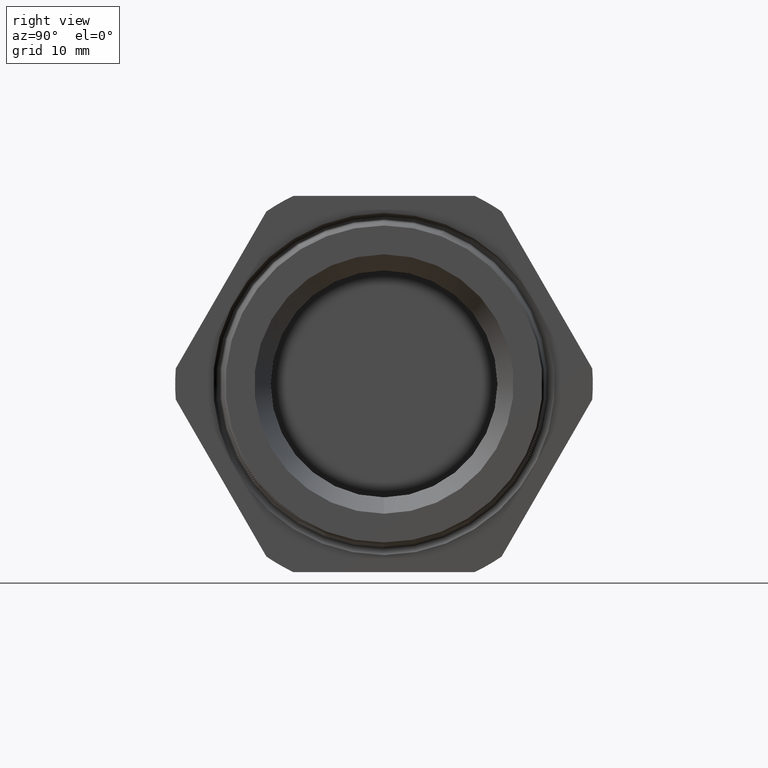
[diagram: clean part render]
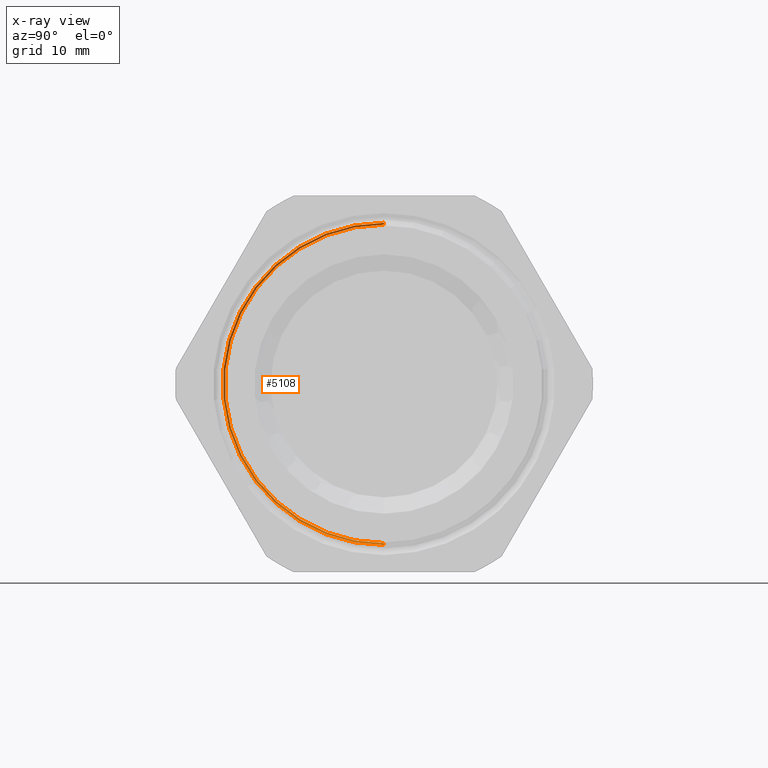
[diagram: x-ray — body ghosted, one internal face saturated and labeled with its STEP entity id]
A machine part, right view, then the same camera in x-ray: the body is ghosted and one INTERNAL B-rep face — a face not visible from any outside direction — is saturated and labeled: STEP entity #5108.
In plain terms, the highlighted conical surface has half-angle 58 deg.
Its self-contained STEP definition (entity closure, byte-faithful):
#1042 = CARTESIAN_POINT ( 'NONE',  ( 0.2726611505627726300, 1.095937749391210100E-016, -0.8949010850755047000 ) ) ;
#1082 = DIRECTION ( 'NONE',  ( 0.5299192642331904700, 0.0000000000000000000, -0.8480480961564351700 ) ) ;
#1083 = VECTOR ( 'NONE', #1082, 39.37007874015747400 ) ;
#1084 = CARTESIAN_POINT ( 'NONE',  ( 0.2662629719890789400, 0.0000000000000000000, -0.8846618589810537600 ) ) ;
#1085 = LINE ( 'NONE', #1084, #1083 ) ;
#1092 = CARTESIAN_POINT ( 'NONE',  ( 0.2726611505627726300, 0.0000000000000000000, 0.8949010850755047000 ) ) ;
#1127 = CARTESIAN_POINT ( 'NONE',  ( 0.2662629719890789400, 0.0000000000000000000, 0.8846618589810537600 ) ) ;
#1141 = LINE ( 'NONE', #1199, #1198 ) ;
#1177 = CARTESIAN_POINT ( 'NONE',  ( 0.2662629719890789400, 1.089926047678572800E-016, -0.8846618589810537600 ) ) ;
#1197 = DIRECTION ( 'NONE',  ( 0.5299192642331904700, 1.038559386480985300E-016, 0.8480480961564351700 ) ) ;
#1198 = VECTOR ( 'NONE', #1197, 39.37007874015747400 ) ;
#1199 = CARTESIAN_POINT ( 'NONE',  ( 0.2662629719890789400, 1.083398313928894600E-016, 0.8846618589810537600 ) ) ;
#1484 = DIRECTION ( 'NONE',  ( 0.0000000000000000000, 0.0000000000000000000, -1.000000000000000000 ) ) ;
#1485 = DIRECTION ( 'NONE',  ( -1.000000000000000000, 0.0000000000000000000, 0.0000000000000000000 ) ) ;
#1486 = CARTESIAN_POINT ( 'NONE',  ( 0.2726611505627726300, 0.0000000000000000000, 0.0000000000000000000 ) ) ;
#1487 = AXIS2_PLACEMENT_3D ( 'NONE', #1486, #1485, #1484 ) ;
#1488 = CIRCLE ( 'NONE', #1487, 0.8949010850755045900 ) ;
#2325 = DIRECTION ( 'NONE',  ( 0.0000000000000000000, 0.0000000000000000000, -1.000000000000000000 ) ) ;
#2326 = DIRECTION ( 'NONE',  ( 1.000000000000000000, 0.0000000000000000000, 0.0000000000000000000 ) ) ;
#2327 = AXIS2_PLACEMENT_3D ( 'NONE', #2332, #2326, #2325 ) ;
#2328 = CIRCLE ( 'NONE', #2327, 0.8846618589810537600 ) ;
#2329 = DIRECTION ( 'NONE',  ( 0.0000000000000000000, 0.0000000000000000000, -1.000000000000000000 ) ) ;
#2330 = DIRECTION ( 'NONE',  ( 1.000000000000000000, 0.0000000000000000000, 0.0000000000000000000 ) ) ;
#2331 = AXIS2_PLACEMENT_3D ( 'NONE', #2337, #2330, #2329 ) ;
#2332 = CARTESIAN_POINT ( 'NONE',  ( 0.2662629719890789400, 0.0000000000000000000, 0.0000000000000000000 ) ) ;
#2333 = CONICAL_SURFACE ( 'NONE', #2331, 0.8846618589810537600, 1.012290966156728300 ) ;
#2334 = FACE_OUTER_BOUND ( 'NONE', #5107, .T. ) ;
#2337 = CARTESIAN_POINT ( 'NONE',  ( 0.2662629719890789400, 0.0000000000000000000, 0.0000000000000000000 ) ) ;
#4348 = VERTEX_POINT ( 'NONE', #1042 ) ;
#4356 = VERTEX_POINT ( 'NONE', #1092 ) ;
#4359 = EDGE_CURVE ( 'NONE', #4415, #4348, #1085, .T. ) ;
#4372 = VERTEX_POINT ( 'NONE', #1127 ) ;
#4404 = EDGE_CURVE ( 'NONE', #4372, #4356, #1141, .T. ) ;
#4415 = VERTEX_POINT ( 'NONE', #1177 ) ;
#4610 = EDGE_CURVE ( 'NONE', #4348, #4356, #1488, .T. ) ;
#5103 = ORIENTED_EDGE ( 'NONE', *, *, #4610, .T. ) ;
#5104 = ORIENTED_EDGE ( 'NONE', *, *, #4359, .T. ) ;
#5105 = ORIENTED_EDGE ( 'NONE', *, *, #5110, .T. ) ;
#5106 = ORIENTED_EDGE ( 'NONE', *, *, #4404, .F. ) ;
#5107 = EDGE_LOOP ( 'NONE', ( #5106, #5105, #5104, #5103 ) ) ;
#5108 = ADVANCED_FACE ( 'NONE', ( #2334 ), #2333, .T. ) ;
#5110 = EDGE_CURVE ( 'NONE', #4372, #4415, #2328, .T. ) ;